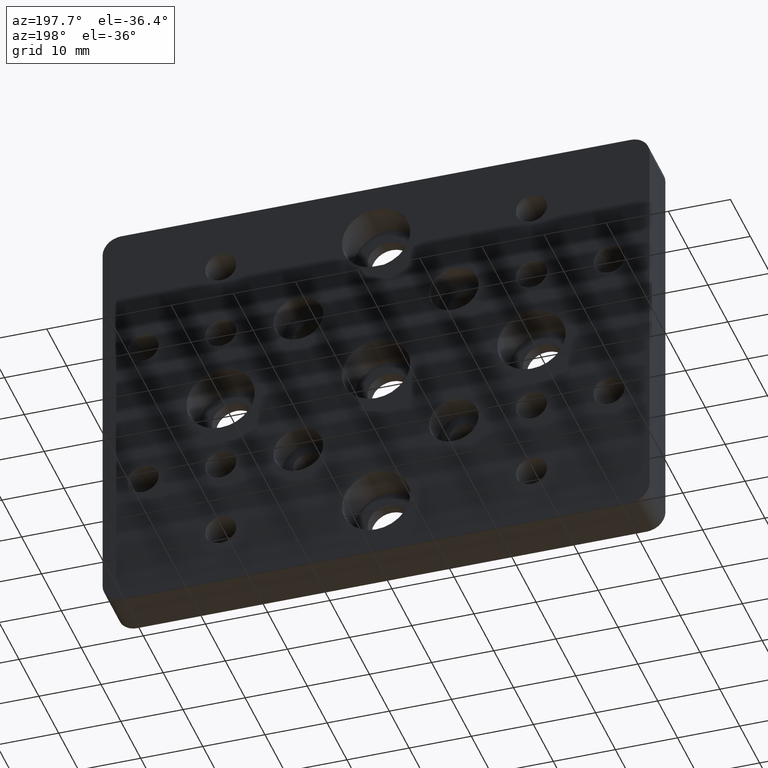
[diagram: clean part render]
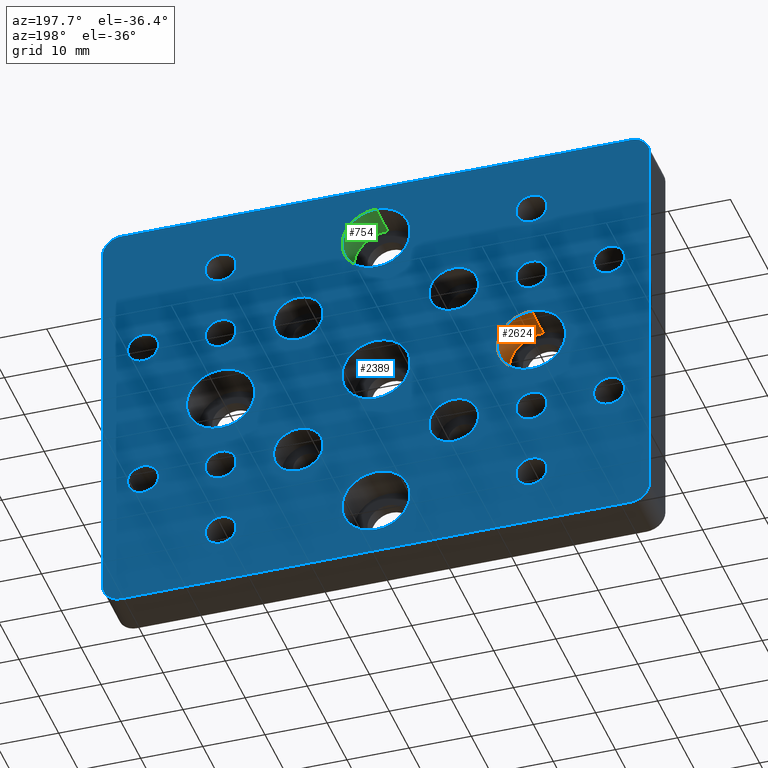
[diagram: same view with three faces highlighted in distinct colors, each labeled with its STEP entity id]
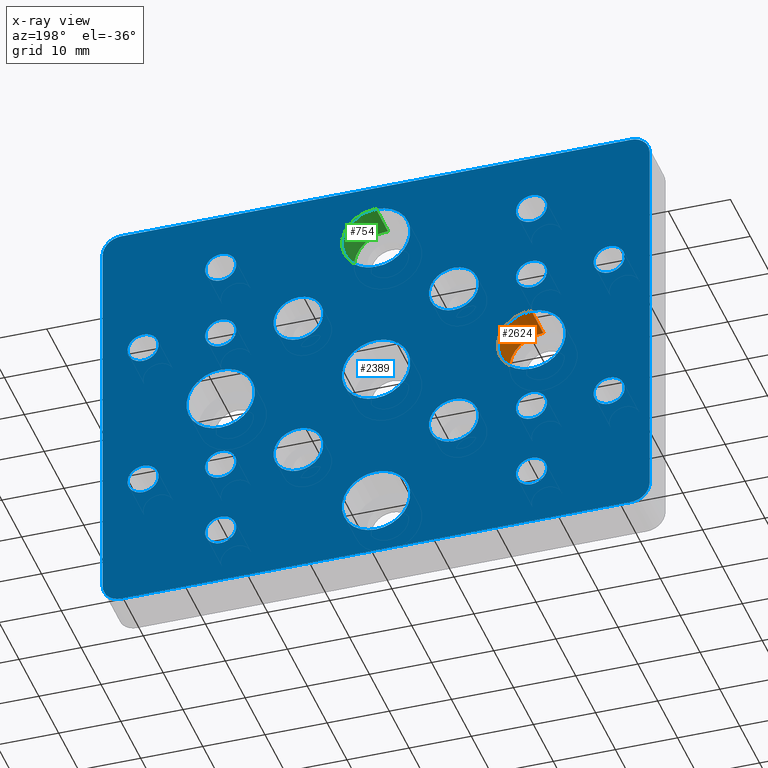
[diagram: x-ray of the same camera — body ghosted, the three highlighted faces saturated]
A machine part, auxiliary view with three faces highlighted in distinct colors.
The next image is the same camera in x-ray (body ghosted, the three faces saturated) — at least one of them is partly hidden behind the body in this view.
Their STEP definitions:

[orange] entity #2624 — the highlighted cylindrical surface (edge-blend (fillet) strip) has radius 5.5 mm, axis along (-0, 1, -0).
#33 = FACE_OUTER_BOUND ( 'NONE', #1479, .T. ) ;
#104 = CARTESIAN_POINT ( 'NONE',  ( -25.00000000000000000, 8.000000000000000000, -5.499999999999994700 ) ) ;
#110 = DIRECTION ( 'NONE',  ( -0.0000000000000000000, 1.000000000000000000, -0.0000000000000000000 ) ) ;
#187 = EDGE_CURVE ( 'NONE', #677, #848, #2114, .T. ) ;
#196 = CARTESIAN_POINT ( 'NONE',  ( -25.00000000000000000, 8.000000000000000000, -5.499999999999994700 ) ) ;
#266 = ORIENTED_EDGE ( 'NONE', *, *, #187, .T. ) ;
#279 = DIRECTION ( 'NONE',  ( -0.0000000000000000000, 1.000000000000000000, -0.0000000000000000000 ) ) ;
#294 = ORIENTED_EDGE ( 'NONE', *, *, #2570, .T. ) ;
#320 = EDGE_CURVE ( 'NONE', #2189, #1106, #508, .T. ) ;
#413 = VECTOR ( 'NONE', #1403, 1000.000000000000000 ) ;
#482 = CARTESIAN_POINT ( 'NONE',  ( -25.00000000000000000, 8.000000000000000000, 0.0000000000000000000 ) ) ;
#496 = DIRECTION ( 'NONE',  ( 0.0000000000000000000, 0.0000000000000000000, 1.000000000000000000 ) ) ;
#503 = LINE ( 'NONE', #2100, #1495 ) ;
#508 = CIRCLE ( 'NONE', #1720, 5.499999999999994700 ) ;
#604 = AXIS2_PLACEMENT_3D ( 'NONE', #2568, #279, #496 ) ;
#606 = EDGE_CURVE ( 'NONE', #1106, #848, #1596, .T. ) ;
#677 = VERTEX_POINT ( 'NONE', #2054 ) ;
#752 = CARTESIAN_POINT ( 'NONE',  ( -25.00000000000000000, 2.000000000000001800, 0.0000000000000000000 ) ) ;
#848 = VERTEX_POINT ( 'NONE', #104 ) ;
#948 = DIRECTION ( 'NONE',  ( 0.0000000000000000000, 0.0000000000000000000, 1.000000000000000000 ) ) ;
#1064 = CARTESIAN_POINT ( 'NONE',  ( -25.00000000000000000, 2.000000000000001800, -5.499999999999994700 ) ) ;
#1106 = VERTEX_POINT ( 'NONE', #1064 ) ;
#1403 = DIRECTION ( 'NONE',  ( -0.0000000000000000000, 1.000000000000000000, -0.0000000000000000000 ) ) ;
#1479 = EDGE_LOOP ( 'NONE', ( #2343, #1549, #294, #266 ) ) ;
#1495 = VECTOR ( 'NONE', #2288, 1000.000000000000000 ) ;
#1549 = ORIENTED_EDGE ( 'NONE', *, *, #320, .F. ) ;
#1596 = LINE ( 'NONE', #196, #413 ) ;
#1720 = AXIS2_PLACEMENT_3D ( 'NONE', #752, #2184, #948 ) ;
#1917 = DIRECTION ( 'NONE',  ( 0.0000000000000000000, 0.0000000000000000000, 1.000000000000000000 ) ) ;
#1973 = CYLINDRICAL_SURFACE ( 'NONE', #604, 5.499999999999994700 ) ;
#2054 = CARTESIAN_POINT ( 'NONE',  ( -25.00000000000000000, 8.000000000000000000, 5.499999999999994700 ) ) ;
#2100 = CARTESIAN_POINT ( 'NONE',  ( -25.00000000000000000, 8.000000000000000000, 5.499999999999994700 ) ) ;
#2114 = CIRCLE ( 'NONE', #2345, 5.499999999999994700 ) ;
#2139 = CARTESIAN_POINT ( 'NONE',  ( -25.00000000000000000, 2.000000000000001800, 5.499999999999994700 ) ) ;
#2184 = DIRECTION ( 'NONE',  ( -0.0000000000000000000, 1.000000000000000000, -0.0000000000000000000 ) ) ;
#2189 = VERTEX_POINT ( 'NONE', #2139 ) ;
#2288 = DIRECTION ( 'NONE',  ( -0.0000000000000000000, 1.000000000000000000, -0.0000000000000000000 ) ) ;
#2343 = ORIENTED_EDGE ( 'NONE', *, *, #606, .F. ) ;
#2345 = AXIS2_PLACEMENT_3D ( 'NONE', #482, #110, #1917 ) ;
#2568 = CARTESIAN_POINT ( 'NONE',  ( -25.00000000000000000, 8.000000000000000000, 0.0000000000000000000 ) ) ;
#2570 = EDGE_CURVE ( 'NONE', #2189, #677, #503, .T. ) ;
#2624 = ADVANCED_FACE ( 'NONE', ( #33 ), #1973, .F. ) ;

[blue] entity #2389 — the highlighted planar face has unit normal (0, 1, 0).
#1 = VERTEX_POINT ( 'NONE', #845 ) ;
#11 = CIRCLE ( 'NONE', #1613, 5.499999999999994700 ) ;
#12 = AXIS2_PLACEMENT_3D ( 'NONE', #2007, #779, #2215 ) ;
#13 = CARTESIAN_POINT ( 'NONE',  ( 12.50000000000000200, 8.000000000000000000, 12.50000000000000000 ) ) ;
#20 = EDGE_CURVE ( 'NONE', #2373, #904, #1065, .T. ) ;
#24 = ORIENTED_EDGE ( 'NONE', *, *, #269, .F. ) ;
#32 = EDGE_LOOP ( 'NONE', ( #2091, #1100, #2645, #1946, #2492, #580, #2445, #546 ) ) ;
#36 = CARTESIAN_POINT ( 'NONE',  ( 25.00000000000000400, 8.000000000000001800, 12.49999999999999800 ) ) ;
#41 = DIRECTION ( 'NONE',  ( -0.0000000000000000000, 1.000000000000000000, -0.0000000000000000000 ) ) ;
#46 = FACE_BOUND ( 'NONE', #1318, .T. ) ;
#50 = AXIS2_PLACEMENT_3D ( 'NONE', #781, #181, #765 ) ;
#66 = AXIS2_PLACEMENT_3D ( 'NONE', #268, #479, #469 ) ;
#70 = CARTESIAN_POINT ( 'NONE',  ( -25.00000000000000000, 8.000000000000001800, -12.50000000000000500 ) ) ;
#72 = LINE ( 'NONE', #359, #2267 ) ;
#73 = DIRECTION ( 'NONE',  ( 0.0000000000000000000, 0.0000000000000000000, 1.000000000000000000 ) ) ;
#74 = FACE_OUTER_BOUND ( 'NONE', #32, .T. ) ;
#84 = ORIENTED_EDGE ( 'NONE', *, *, #911, .F. ) ;
#102 = CIRCLE ( 'NONE', #2455, 2.499999999999988500 ) ;
#104 = CARTESIAN_POINT ( 'NONE',  ( -25.00000000000000000, 8.000000000000000000, -5.499999999999994700 ) ) ;
#106 = EDGE_CURVE ( 'NONE', #926, #143, #1194, .T. ) ;
#108 = CIRCLE ( 'NONE', #1317, 2.499999999999988500 ) ;
#110 = DIRECTION ( 'NONE',  ( -0.0000000000000000000, 1.000000000000000000, -0.0000000000000000000 ) ) ;
#118 = ORIENTED_EDGE ( 'NONE', *, *, #2160, .F. ) ;
#119 = DIRECTION ( 'NONE',  ( -0.0000000000000000000, 1.000000000000000000, -0.0000000000000000000 ) ) ;
#124 = EDGE_CURVE ( 'NONE', #848, #677, #11, .T. ) ;
#127 = CARTESIAN_POINT ( 'NONE',  ( 6.735557395310435100E-016, 8.000000000000000000, -30.49999999999999600 ) ) ;
#132 = FACE_BOUND ( 'NONE', #928, .T. ) ;
#134 = LINE ( 'NONE', #2252, #1738 ) ;
#142 = VERTEX_POINT ( 'NONE', #1128 ) ;
#143 = VERTEX_POINT ( 'NONE', #1310 ) ;
#144 = DIRECTION ( 'NONE',  ( -0.0000000000000000000, 1.000000000000000000, -0.0000000000000000000 ) ) ;
#158 = CIRCLE ( 'NONE', #1511, 2.499999999999988500 ) ;
#164 = FACE_BOUND ( 'NONE', #929, .T. ) ;
#180 = CARTESIAN_POINT ( 'NONE',  ( 12.50000000000000200, 8.000000000000000000, 8.500000000000001800 ) ) ;
#181 = DIRECTION ( 'NONE',  ( -0.0000000000000000000, 1.000000000000000000, -0.0000000000000000000 ) ) ;
#185 = CARTESIAN_POINT ( 'NONE',  ( 25.00000000000000000, 8.000000000000000000, 0.0000000000000000000 ) ) ;
#187 = EDGE_CURVE ( 'NONE', #677, #848, #2114, .T. ) ;
#189 = VERTEX_POINT ( 'NONE', #1733 ) ;
#191 = CIRCLE ( 'NONE', #2510, 5.499999999999994700 ) ;
#192 = AXIS2_PLACEMENT_3D ( 'NONE', #206, #1465, #1668 ) ;
#200 = CARTESIAN_POINT ( 'NONE',  ( -25.00000000000000000, 8.000000000000001800, -27.49999999999999600 ) ) ;
#203 = EDGE_CURVE ( 'NONE', #2276, #189, #1396, .T. ) ;
#205 = ORIENTED_EDGE ( 'NONE', *, *, #1054, .F. ) ;
#206 = CARTESIAN_POINT ( 'NONE',  ( 37.50000000000000700, 8.000000000000001800, 12.49999999999999800 ) ) ;
#212 = DIRECTION ( 'NONE',  ( -0.0000000000000000000, 1.000000000000000000, -0.0000000000000000000 ) ) ;
#215 = AXIS2_PLACEMENT_3D ( 'NONE', #2088, #1685, #1880 ) ;
#219 = ORIENTED_EDGE ( 'NONE', *, *, #281, .F. ) ;
#224 = EDGE_CURVE ( 'NONE', #1415, #2373, #1502, .T. ) ;
#231 = VERTEX_POINT ( 'NONE', #349 ) ;
#232 = DIRECTION ( 'NONE',  ( 0.0000000000000000000, 0.0000000000000000000, 1.000000000000000000 ) ) ;
#255 = CARTESIAN_POINT ( 'NONE',  ( 25.00000000000000400, 8.000000000000001800, -10.00000000000001100 ) ) ;
#265 = ORIENTED_EDGE ( 'NONE', *, *, #680, .F. ) ;
#268 = CARTESIAN_POINT ( 'NONE',  ( 25.00000000000000000, 8.000000000000001800, -25.00000000000000700 ) ) ;
#269 = EDGE_CURVE ( 'NONE', #2524, #520, #1919, .T. ) ;
#281 = EDGE_CURVE ( 'NONE', #1345, #806, #2565, .T. ) ;
#303 = EDGE_CURVE ( 'NONE', #514, #328, #1016, .T. ) ;
#318 = CARTESIAN_POINT ( 'NONE',  ( -25.00000000000000000, 8.000000000000001800, 22.50000000000002100 ) ) ;
#322 = FACE_BOUND ( 'NONE', #1369, .T. ) ;
#328 = VERTEX_POINT ( 'NONE', #1359 ) ;
#334 = CARTESIAN_POINT ( 'NONE',  ( 37.50000000000000700, 8.000000000000001800, 10.00000000000001100 ) ) ;
#338 = DIRECTION ( 'NONE',  ( 0.0000000000000000000, 0.0000000000000000000, 1.000000000000000000 ) ) ;
#343 = AXIS2_PLACEMENT_3D ( 'NONE', #1872, #883, #2284 ) ;
#344 = DIRECTION ( 'NONE',  ( 0.0000000000000000000, 0.0000000000000000000, 1.000000000000000000 ) ) ;
#349 = CARTESIAN_POINT ( 'NONE',  ( 25.00000000000000000, 8.000000000000001800, 27.49999999999999600 ) ) ;
#359 = CARTESIAN_POINT ( 'NONE',  ( -44.00000000000000000, 8.000000000000000000, -34.50000000000000000 ) ) ;
#366 = DIRECTION ( 'NONE',  ( -0.0000000000000000000, 1.000000000000000000, -0.0000000000000000000 ) ) ;
#374 = DIRECTION ( 'NONE',  ( -0.0000000000000000000, 1.000000000000000000, -0.0000000000000000000 ) ) ;
#376 = CARTESIAN_POINT ( 'NONE',  ( 25.00000000000000400, 8.000000000000001800, 14.99999999999998800 ) ) ;
#380 = CARTESIAN_POINT ( 'NONE',  ( 0.0000000000000000000, 8.000000000000000000, -25.00000000000000000 ) ) ;
#383 = CIRCLE ( 'NONE', #1772, 2.499999999999988500 ) ;
#389 = FACE_BOUND ( 'NONE', #2322, .T. ) ;
#394 = EDGE_CURVE ( 'NONE', #559, #1415, #72, .T. ) ;
#403 = ORIENTED_EDGE ( 'NONE', *, *, #1679, .F. ) ;
#420 = VERTEX_POINT ( 'NONE', #768 ) ;
#421 = EDGE_CURVE ( 'NONE', #1817, #1785, #826, .T. ) ;
#424 = ORIENTED_EDGE ( 'NONE', *, *, #203, .F. ) ;
#428 = VERTEX_POINT ( 'NONE', #1802 ) ;
#457 = DIRECTION ( 'NONE',  ( 0.0000000000000000000, 0.0000000000000000000, 1.000000000000000000 ) ) ;
#466 = CIRCLE ( 'NONE', #2113, 2.499999999999988500 ) ;
#469 = DIRECTION ( 'NONE',  ( 0.0000000000000000000, 0.0000000000000000000, 1.000000000000000000 ) ) ;
#475 = EDGE_CURVE ( 'NONE', #904, #428, #2109, .T. ) ;
#477 = AXIS2_PLACEMENT_3D ( 'NONE', #2099, #1703, #2105 ) ;
#478 = FACE_BOUND ( 'NONE', #1714, .T. ) ;
#479 = DIRECTION ( 'NONE',  ( -0.0000000000000000000, 1.000000000000000000, -0.0000000000000000000 ) ) ;
#481 = EDGE_CURVE ( 'NONE', #586, #2061, #569, .T. ) ;
#482 = CARTESIAN_POINT ( 'NONE',  ( -25.00000000000000000, 8.000000000000000000, 0.0000000000000000000 ) ) ;
#489 = CARTESIAN_POINT ( 'NONE',  ( 37.50000000000000700, 8.000000000000001800, -14.99999999999999100 ) ) ;
#499 = CARTESIAN_POINT ( 'NONE',  ( 0.0000000000000000000, 8.000000000000000000, -19.50000000000000700 ) ) ;
#506 = DIRECTION ( 'NONE',  ( -0.0000000000000000000, 1.000000000000000000, -0.0000000000000000000 ) ) ;
#507 = CARTESIAN_POINT ( 'NONE',  ( -25.00000000000000000, 8.000000000000001800, -12.50000000000000500 ) ) ;
#514 = VERTEX_POINT ( 'NONE', #629 ) ;
#520 = VERTEX_POINT ( 'NONE', #1175 ) ;
#523 = VECTOR ( 'NONE', #1675, 1000.000000000000000 ) ;
#525 = VERTEX_POINT ( 'NONE', #376 ) ;
#530 = AXIS2_PLACEMENT_3D ( 'NONE', #1390, #374, #778 ) ;
#538 = CIRCLE ( 'NONE', #2381, 2.499999999999988500 ) ;
#544 = DIRECTION ( 'NONE',  ( 0.0000000000000000000, 0.0000000000000000000, 1.000000000000000000 ) ) ;
#545 = CIRCLE ( 'NONE', #656, 4.000000000000000000 ) ;
#546 = ORIENTED_EDGE ( 'NONE', *, *, #2600, .T. ) ;
#552 = CARTESIAN_POINT ( 'NONE',  ( 25.00000000000000000, 8.000000000000000000, 0.0000000000000000000 ) ) ;
#553 = EDGE_CURVE ( 'NONE', #1665, #1446, #669, .T. ) ;
#559 = VERTEX_POINT ( 'NONE', #568 ) ;
#561 = AXIS2_PLACEMENT_3D ( 'NONE', #699, #119, #1513 ) ;
#564 = AXIS2_PLACEMENT_3D ( 'NONE', #2360, #2611, #1581 ) ;
#568 = CARTESIAN_POINT ( 'NONE',  ( 40.99999999999999300, 8.000000000000000000, -34.50000000000000000 ) ) ;
#569 = CIRCLE ( 'NONE', #2108, 4.000000000000000000 ) ;
#577 = CARTESIAN_POINT ( 'NONE',  ( -25.00000000000000000, 8.000000000000001800, 12.50000000000000500 ) ) ;
#579 = ORIENTED_EDGE ( 'NONE', *, *, #481, .F. ) ;
#580 = ORIENTED_EDGE ( 'NONE', *, *, #475, .T. ) ;
#586 = VERTEX_POINT ( 'NONE', #180 ) ;
#588 = DIRECTION ( 'NONE',  ( 0.0000000000000000000, 0.0000000000000000000, 1.000000000000000000 ) ) ;
#594 = AXIS2_PLACEMENT_3D ( 'NONE', #1975, #1555, #1540 ) ;
#600 = AXIS2_PLACEMENT_3D ( 'NONE', #2032, #1654, #1849 ) ;
#603 = DIRECTION ( 'NONE',  ( 0.0000000000000000000, -0.0000000000000000000, 1.000000000000000000 ) ) ;
#610 = EDGE_CURVE ( 'NONE', #1295, #2551, #538, .T. ) ;
#623 = ORIENTED_EDGE ( 'NONE', *, *, #303, .F. ) ;
#629 = CARTESIAN_POINT ( 'NONE',  ( 25.00000000000000000, 8.000000000000000000, -5.499999999999994700 ) ) ;
#637 = CARTESIAN_POINT ( 'NONE',  ( -44.00000000000000000, 8.000000000000000000, -34.50000000000000000 ) ) ;
#642 = DIRECTION ( 'NONE',  ( -0.0000000000000000000, 1.000000000000000000, -0.0000000000000000000 ) ) ;
#643 = EDGE_CURVE ( 'NONE', #428, #1094, #2590, .T. ) ;
#651 = ORIENTED_EDGE ( 'NONE', *, *, #1170, .F. ) ;
#655 = DIRECTION ( 'NONE',  ( -0.0000000000000000000, 1.000000000000000000, -0.0000000000000000000 ) ) ;
#656 = AXIS2_PLACEMENT_3D ( 'NONE', #1566, #1385, #338 ) ;
#658 = CARTESIAN_POINT ( 'NONE',  ( -12.50000000000070900, 8.000000000000000000, -12.49999999999929800 ) ) ;
#661 = CARTESIAN_POINT ( 'NONE',  ( 44.00000000000000000, 8.000000000000000000, 31.50000000000000000 ) ) ;
#665 = VERTEX_POINT ( 'NONE', #1219 ) ;
#666 = EDGE_CURVE ( 'NONE', #989, #1411, #2533, .T. ) ;
#668 = DIRECTION ( 'NONE',  ( 0.0000000000000000000, 0.0000000000000000000, 1.000000000000000000 ) ) ;
#669 = CIRCLE ( 'NONE', #1095, 2.499999999999988500 ) ;
#673 = FACE_BOUND ( 'NONE', #2562, .T. ) ;
#675 = DIRECTION ( 'NONE',  ( -0.0000000000000000000, 1.000000000000000000, -0.0000000000000000000 ) ) ;
#677 = VERTEX_POINT ( 'NONE', #2054 ) ;
#680 = EDGE_CURVE ( 'NONE', #1, #1029, #2176, .T. ) ;
#681 = DIRECTION ( 'NONE',  ( -0.0000000000000000000, 1.000000000000000000, -0.0000000000000000000 ) ) ;
#682 = VERTEX_POINT ( 'NONE', #2459 ) ;
#686 = CARTESIAN_POINT ( 'NONE',  ( 40.99999999999999300, 8.000000000000000000, 31.50000000000000000 ) ) ;
#692 = CARTESIAN_POINT ( 'NONE',  ( -37.50000000000002100, 8.000000000000001800, -14.99999999999998200 ) ) ;
#699 = CARTESIAN_POINT ( 'NONE',  ( 0.0000000000000000000, 8.000000000000000000, 0.0000000000000000000 ) ) ;
#703 = CIRCLE ( 'NONE', #564, 2.499999999999988500 ) ;
#705 = FACE_BOUND ( 'NONE', #1807, .T. ) ;
#706 = DIRECTION ( 'NONE',  ( -0.0000000000000000000, 1.000000000000000000, -0.0000000000000000000 ) ) ;
#707 = DIRECTION ( 'NONE',  ( -0.0000000000000000000, 1.000000000000000000, -0.0000000000000000000 ) ) ;
#714 = EDGE_CURVE ( 'NONE', #665, #986, #2015, .T. ) ;
#718 = ORIENTED_EDGE ( 'NONE', *, *, #1570, .F. ) ;
#725 = AXIS2_PLACEMENT_3D ( 'NONE', #1493, #506, #1907 ) ;
#733 = CARTESIAN_POINT ( 'NONE',  ( 25.00000000000000400, 8.000000000000001800, -12.49999999999999800 ) ) ;
#742 = CARTESIAN_POINT ( 'NONE',  ( -40.99999999999999300, 8.000000000000000000, -34.50000000000000000 ) ) ;
#762 = CIRCLE ( 'NONE', #343, 2.499999999999988500 ) ;
#765 = DIRECTION ( 'NONE',  ( 0.0000000000000000000, 0.0000000000000000000, 1.000000000000000000 ) ) ;
#767 = FACE_BOUND ( 'NONE', #1949, .T. ) ;
#768 = CARTESIAN_POINT ( 'NONE',  ( -12.50000000000070900, 8.000000000000000000, -16.49999999999930000 ) ) ;
#775 = VERTEX_POINT ( 'NONE', #2508 ) ;
#778 = DIRECTION ( 'NONE',  ( 0.0000000000000000000, 0.0000000000000000000, 1.000000000000000000 ) ) ;
#779 = DIRECTION ( 'NONE',  ( -0.0000000000000000000, 1.000000000000000000, -0.0000000000000000000 ) ) ;
#781 = CARTESIAN_POINT ( 'NONE',  ( -37.50000000000002100, 8.000000000000001800, -12.49999999999999300 ) ) ;
#787 = ORIENTED_EDGE ( 'NONE', *, *, #2014, .F. ) ;
#806 = VERTEX_POINT ( 'NONE', #894 ) ;
#813 = DIRECTION ( 'NONE',  ( 0.0000000000000000000, 0.0000000000000000000, 1.000000000000000000 ) ) ;
#820 = ORIENTED_EDGE ( 'NONE', *, *, #1014, .F. ) ;
#825 = CARTESIAN_POINT ( 'NONE',  ( -37.49999999999999300, 8.000000000000001800, 12.50000000000000500 ) ) ;
#826 = CIRCLE ( 'NONE', #1884, 5.499999999999994700 ) ;
#827 = CIRCLE ( 'NONE', #215, 2.499999999999988500 ) ;
#831 = DIRECTION ( 'NONE',  ( 0.0000000000000000000, 0.0000000000000000000, 1.000000000000000000 ) ) ;
#833 = CIRCLE ( 'NONE', #1707, 3.999999999999996400 ) ;
#835 = EDGE_LOOP ( 'NONE', ( #205, #265 ) ) ;
#840 = DIRECTION ( 'NONE',  ( 0.0000000000000000000, 0.0000000000000000000, 1.000000000000000000 ) ) ;
#845 = CARTESIAN_POINT ( 'NONE',  ( -37.49999999999999300, 8.000000000000001800, 10.00000000000001800 ) ) ;
#848 = VERTEX_POINT ( 'NONE', #104 ) ;
#856 = EDGE_CURVE ( 'NONE', #2061, #586, #1827, .T. ) ;
#878 = VERTEX_POINT ( 'NONE', #318 ) ;
#883 = DIRECTION ( 'NONE',  ( -0.0000000000000000000, 1.000000000000000000, -0.0000000000000000000 ) ) ;
#890 = EDGE_CURVE ( 'NONE', #2216, #878, #2503, .T. ) ;
#894 = CARTESIAN_POINT ( 'NONE',  ( 12.49999999999930000, 8.000000000000000000, -8.500000000000001800 ) ) ;
#898 = EDGE_CURVE ( 'NONE', #1070, #142, #383, .T. ) ;
#904 = VERTEX_POINT ( 'NONE', #945 ) ;
#911 = EDGE_CURVE ( 'NONE', #878, #2216, #703, .T. ) ;
#913 = CIRCLE ( 'NONE', #66, 2.499999999999988500 ) ;
#918 = AXIS2_PLACEMENT_3D ( 'NONE', #733, #1154, #1752 ) ;
#923 = FACE_BOUND ( 'NONE', #835, .T. ) ;
#926 = VERTEX_POINT ( 'NONE', #1774 ) ;
#927 = EDGE_CURVE ( 'NONE', #1589, #1379, #2148, .T. ) ;
#928 = EDGE_LOOP ( 'NONE', ( #118, #1929 ) ) ;
#929 = EDGE_LOOP ( 'NONE', ( #1350, #403 ) ) ;
#932 = ORIENTED_EDGE ( 'NONE', *, *, #124, .F. ) ;
#934 = DIRECTION ( 'NONE',  ( 0.0000000000000000000, 1.000000000000000000, 0.0000000000000000000 ) ) ;
#941 = DIRECTION ( 'NONE',  ( 0.0000000000000000000, 0.0000000000000000000, 1.000000000000000000 ) ) ;
#945 = CARTESIAN_POINT ( 'NONE',  ( -44.00000000000000000, 8.000000000000000000, 31.50000000000000000 ) ) ;
#954 = DIRECTION ( 'NONE',  ( 0.0000000000000000000, 0.0000000000000000000, 1.000000000000000000 ) ) ;
#969 = AXIS2_PLACEMENT_3D ( 'NONE', #185, #1189, #813 ) ;
#972 = DIRECTION ( 'NONE',  ( -0.0000000000000000000, 1.000000000000000000, -0.0000000000000000000 ) ) ;
#980 = CARTESIAN_POINT ( 'NONE',  ( -25.00000000000000000, 8.000000000000001800, -25.00000000000000700 ) ) ;
#983 = DIRECTION ( 'NONE',  ( -0.0000000000000000000, 1.000000000000000000, -0.0000000000000000000 ) ) ;
#986 = VERTEX_POINT ( 'NONE', #2006 ) ;
#989 = VERTEX_POINT ( 'NONE', #2017 ) ;
#990 = DIRECTION ( 'NONE',  ( -0.0000000000000000000, 1.000000000000000000, -0.0000000000000000000 ) ) ;
#997 = DIRECTION ( 'NONE',  ( 1.000000000000000000, 0.0000000000000000000, 0.0000000000000000000 ) ) ;
#1001 = VERTEX_POINT ( 'NONE', #2424 ) ;
#1002 = AXIS2_PLACEMENT_3D ( 'NONE', #2253, #642, #1261 ) ;
#1004 = DIRECTION ( 'NONE',  ( -0.0000000000000000000, 1.000000000000000000, -0.0000000000000000000 ) ) ;
#1013 = CIRCLE ( 'NONE', #477, 5.499999999999994700 ) ;
#1014 = EDGE_CURVE ( 'NONE', #525, #1580, #102, .T. ) ;
#1016 = CIRCLE ( 'NONE', #1375, 5.499999999999994700 ) ;
#1017 = CARTESIAN_POINT ( 'NONE',  ( -44.00000000000000000, 8.000000000000000000, 34.50000000000000000 ) ) ;
#1020 = DIRECTION ( 'NONE',  ( -0.0000000000000000000, -0.0000000000000000000, -1.000000000000000000 ) ) ;
#1021 = CARTESIAN_POINT ( 'NONE',  ( 25.00000000000000400, 8.000000000000001800, 10.00000000000001100 ) ) ;
#1029 = VERTEX_POINT ( 'NONE', #2456 ) ;
#1036 = CARTESIAN_POINT ( 'NONE',  ( -25.00000000000000000, 8.000000000000001800, 10.00000000000001800 ) ) ;
#1041 = DIRECTION ( 'NONE',  ( 0.0000000000000000000, 1.000000000000000000, 0.0000000000000000000 ) ) ;
#1054 = EDGE_CURVE ( 'NONE', #1029, #1, #2046, .T. ) ;
#1061 = EDGE_LOOP ( 'NONE', ( #1690, #2204 ) ) ;
#1065 = LINE ( 'NONE', #637, #523 ) ;
#1067 = DIRECTION ( 'NONE',  ( -0.0000000000000000000, 1.000000000000000000, -0.0000000000000000000 ) ) ;
#1070 = VERTEX_POINT ( 'NONE', #1036 ) ;
#1071 = EDGE_CURVE ( 'NONE', #520, #2524, #827, .T. ) ;
#1091 = CIRCLE ( 'NONE', #1217, 2.499999999999988500 ) ;
#1094 = VERTEX_POINT ( 'NONE', #1413 ) ;
#1095 = AXIS2_PLACEMENT_3D ( 'NONE', #980, #366, #2392 ) ;
#1100 = ORIENTED_EDGE ( 'NONE', *, *, #1588, .T. ) ;
#1101 = AXIS2_PLACEMENT_3D ( 'NONE', #1672, #2496, #2067 ) ;
#1116 = DIRECTION ( 'NONE',  ( 0.0000000000000000000, 0.0000000000000000000, 1.000000000000000000 ) ) ;
#1127 = EDGE_CURVE ( 'NONE', #1923, #231, #762, .T. ) ;
#1128 = CARTESIAN_POINT ( 'NONE',  ( -25.00000000000000000, 8.000000000000001800, 14.99999999999999500 ) ) ;
#1140 = CARTESIAN_POINT ( 'NONE',  ( -40.99999999999999300, 8.000000000000000000, -31.50000000000000000 ) ) ;
#1154 = DIRECTION ( 'NONE',  ( -0.0000000000000000000, 1.000000000000000000, -0.0000000000000000000 ) ) ;
#1156 = DIRECTION ( 'NONE',  ( -0.0000000000000000000, 1.000000000000000000, -0.0000000000000000000 ) ) ;
#1159 = EDGE_CURVE ( 'NONE', #2630, #420, #1597, .T. ) ;
#1170 = EDGE_CURVE ( 'NONE', #189, #2276, #1013, .T. ) ;
#1175 = CARTESIAN_POINT ( 'NONE',  ( 25.00000000000000400, 8.000000000000001800, -14.99999999999998800 ) ) ;
#1189 = DIRECTION ( 'NONE',  ( -0.0000000000000000000, 1.000000000000000000, -0.0000000000000000000 ) ) ;
#1190 = ORIENTED_EDGE ( 'NONE', *, *, #1539, .F. ) ;
#1194 = CIRCLE ( 'NONE', #561, 5.499999999999994700 ) ;
#1197 = AXIS2_PLACEMENT_3D ( 'NONE', #1140, #934, #941 ) ;
#1199 = EDGE_LOOP ( 'NONE', ( #718, #2421 ) ) ;
#1200 = CARTESIAN_POINT ( 'NONE',  ( -37.50000000000002100, 8.000000000000001800, -12.49999999999999300 ) ) ;
#1216 = DIRECTION ( 'NONE',  ( 0.0000000000000000000, 0.0000000000000000000, 1.000000000000000000 ) ) ;
#1217 = AXIS2_PLACEMENT_3D ( 'NONE', #2132, #1287, #1529 ) ;
#1218 = ORIENTED_EDGE ( 'NONE', *, *, #1732, .F. ) ;
#1219 = CARTESIAN_POINT ( 'NONE',  ( -25.00000000000000000, 8.000000000000001800, -10.00000000000001800 ) ) ;
#1229 = ORIENTED_EDGE ( 'NONE', *, *, #898, .F. ) ;
#1237 = DIRECTION ( 'NONE',  ( 0.0000000000000000000, 0.0000000000000000000, 1.000000000000000000 ) ) ;
#1239 = DIRECTION ( 'NONE',  ( 0.0000000000000000000, 0.0000000000000000000, 1.000000000000000000 ) ) ;
#1247 = FACE_BOUND ( 'NONE', #2059, .T. ) ;
#1250 = CIRCLE ( 'NONE', #600, 2.499999999999988500 ) ;
#1251 = CARTESIAN_POINT ( 'NONE',  ( -12.50000000000000200, 8.000000000000000000, 12.50000000000070500 ) ) ;
#1258 = VERTEX_POINT ( 'NONE', #1735 ) ;
#1261 = DIRECTION ( 'NONE',  ( 0.0000000000000000000, 0.0000000000000000000, 1.000000000000000000 ) ) ;
#1273 = DIRECTION ( 'NONE',  ( -0.0000000000000000000, 1.000000000000000000, -0.0000000000000000000 ) ) ;
#1276 = CARTESIAN_POINT ( 'NONE',  ( -37.49999999999999300, 8.000000000000001800, 12.50000000000000500 ) ) ;
#1287 = DIRECTION ( 'NONE',  ( -0.0000000000000000000, 1.000000000000000000, -0.0000000000000000000 ) ) ;
#1295 = VERTEX_POINT ( 'NONE', #692 ) ;
#1306 = CARTESIAN_POINT ( 'NONE',  ( -12.50000000000070900, 8.000000000000000000, -8.499999999999298300 ) ) ;
#1310 = CARTESIAN_POINT ( 'NONE',  ( 0.0000000000000000000, 8.000000000000000000, 5.499999999999994700 ) ) ;
#1315 = CARTESIAN_POINT ( 'NONE',  ( -25.00000000000000000, 8.000000000000001800, 27.49999999999999600 ) ) ;
#1317 = AXIS2_PLACEMENT_3D ( 'NONE', #36, #706, #73 ) ;
#1318 = EDGE_LOOP ( 'NONE', ( #651, #424 ) ) ;
#1338 = FACE_BOUND ( 'NONE', #2436, .T. ) ;
#1344 = DIRECTION ( 'NONE',  ( 0.0000000000000000000, 0.0000000000000000000, 1.000000000000000000 ) ) ;
#1345 = VERTEX_POINT ( 'NONE', #2203 ) ;
#1350 = ORIENTED_EDGE ( 'NONE', *, *, #1930, .F. ) ;
#1351 = AXIS2_PLACEMENT_3D ( 'NONE', #825, #675, #457 ) ;
#1356 = CARTESIAN_POINT ( 'NONE',  ( -12.50000000000000200, 8.000000000000000000, 8.500000000000707000 ) ) ;
#1359 = CARTESIAN_POINT ( 'NONE',  ( 25.00000000000000000, 8.000000000000000000, 5.499999999999994700 ) ) ;
#1369 = EDGE_LOOP ( 'NONE', ( #1762, #219 ) ) ;
#1370 = EDGE_CURVE ( 'NONE', #1446, #1665, #1700, .T. ) ;
#1375 = AXIS2_PLACEMENT_3D ( 'NONE', #552, #1988, #2582 ) ;
#1379 = VERTEX_POINT ( 'NONE', #1356 ) ;
#1385 = DIRECTION ( 'NONE',  ( -0.0000000000000000000, 1.000000000000000000, -0.0000000000000000000 ) ) ;
#1390 = CARTESIAN_POINT ( 'NONE',  ( -12.50000000000000200, 8.000000000000000000, 12.50000000000070500 ) ) ;
#1391 = CIRCLE ( 'NONE', #2169, 2.999999999999999100 ) ;
#1395 = CIRCLE ( 'NONE', #969, 5.499999999999994700 ) ;
#1396 = CIRCLE ( 'NONE', #1525, 5.499999999999994700 ) ;
#1397 = DIRECTION ( 'NONE',  ( 0.0000000000000000000, 0.0000000000000000000, 1.000000000000000000 ) ) ;
#1409 = CARTESIAN_POINT ( 'NONE',  ( 0.0000000000000000000, 8.000000000000000000, -25.00000000000000000 ) ) ;
#1411 = VERTEX_POINT ( 'NONE', #334 ) ;
#1413 = CARTESIAN_POINT ( 'NONE',  ( 40.99999999999999300, 8.000000000000000000, 34.50000000000000000 ) ) ;
#1415 = VERTEX_POINT ( 'NONE', #742 ) ;
#1433 = EDGE_CURVE ( 'NONE', #1785, #1817, #191, .T. ) ;
#1446 = VERTEX_POINT ( 'NONE', #200 ) ;
#1456 = EDGE_CURVE ( 'NONE', #328, #514, #1395, .T. ) ;
#1457 = EDGE_LOOP ( 'NONE', ( #1657, #932 ) ) ;
#1465 = DIRECTION ( 'NONE',  ( -0.0000000000000000000, 1.000000000000000000, -0.0000000000000000000 ) ) ;
#1488 = DIRECTION ( 'NONE',  ( 0.0000000000000000000, 0.0000000000000000000, 1.000000000000000000 ) ) ;
#1493 = CARTESIAN_POINT ( 'NONE',  ( 37.50000000000000700, 8.000000000000001800, -12.50000000000000200 ) ) ;
#1502 = CIRCLE ( 'NONE', #1197, 2.999999999999999100 ) ;
#1511 = AXIS2_PLACEMENT_3D ( 'NONE', #1542, #2355, #1344 ) ;
#1512 = EDGE_LOOP ( 'NONE', ( #1843, #1968 ) ) ;
#1513 = DIRECTION ( 'NONE',  ( 0.0000000000000000000, 0.0000000000000000000, 1.000000000000000000 ) ) ;
#1525 = AXIS2_PLACEMENT_3D ( 'NONE', #1934, #2342, #1533 ) ;
#1529 = DIRECTION ( 'NONE',  ( 0.0000000000000000000, 0.0000000000000000000, 1.000000000000000000 ) ) ;
#1533 = DIRECTION ( 'NONE',  ( 0.0000000000000000000, 0.0000000000000000000, 1.000000000000000000 ) ) ;
#1539 = EDGE_CURVE ( 'NONE', #142, #1070, #2107, .T. ) ;
#1540 = DIRECTION ( 'NONE',  ( 0.0000000000000000000, 0.0000000000000000000, 1.000000000000000000 ) ) ;
#1542 = CARTESIAN_POINT ( 'NONE',  ( 37.50000000000000700, 8.000000000000001800, 12.49999999999999800 ) ) ;
#1543 = AXIS2_PLACEMENT_3D ( 'NONE', #1778, #1156, #544 ) ;
#1555 = DIRECTION ( 'NONE',  ( -0.0000000000000000000, 1.000000000000000000, -0.0000000000000000000 ) ) ;
#1558 = EDGE_LOOP ( 'NONE', ( #2289, #2462 ) ) ;
#1566 = CARTESIAN_POINT ( 'NONE',  ( -12.50000000000070900, 8.000000000000000000, -12.49999999999929800 ) ) ;
#1570 = EDGE_CURVE ( 'NONE', #231, #1923, #1592, .T. ) ;
#1580 = VERTEX_POINT ( 'NONE', #1021 ) ;
#1581 = DIRECTION ( 'NONE',  ( 0.0000000000000000000, 0.0000000000000000000, 1.000000000000000000 ) ) ;
#1582 = ORIENTED_EDGE ( 'NONE', *, *, #1766, .F. ) ;
#1588 = EDGE_CURVE ( 'NONE', #775, #559, #1391, .T. ) ;
#1589 = VERTEX_POINT ( 'NONE', #2086 ) ;
#1592 = CIRCLE ( 'NONE', #1002, 2.499999999999988500 ) ;
#1597 = CIRCLE ( 'NONE', #2131, 4.000000000000000000 ) ;
#1608 = EDGE_CURVE ( 'NONE', #806, #1345, #2173, .T. ) ;
#1613 = AXIS2_PLACEMENT_3D ( 'NONE', #2557, #681, #2135 ) ;
#1639 = CIRCLE ( 'NONE', #50, 2.499999999999988500 ) ;
#1648 = ORIENTED_EDGE ( 'NONE', *, *, #1370, .F. ) ;
#1654 = DIRECTION ( 'NONE',  ( -0.0000000000000000000, 1.000000000000000000, -0.0000000000000000000 ) ) ;
#1657 = ORIENTED_EDGE ( 'NONE', *, *, #187, .F. ) ;
#1658 = CARTESIAN_POINT ( 'NONE',  ( -44.00000000000000000, 8.000000000000000000, -31.50000000000000000 ) ) ;
#1662 = ORIENTED_EDGE ( 'NONE', *, *, #856, .F. ) ;
#1665 = VERTEX_POINT ( 'NONE', #2298 ) ;
#1668 = DIRECTION ( 'NONE',  ( 0.0000000000000000000, 0.0000000000000000000, 1.000000000000000000 ) ) ;
#1672 = CARTESIAN_POINT ( 'NONE',  ( 0.0000000000000000000, 8.000000000000000000, 0.0000000000000000000 ) ) ;
#1674 = FACE_BOUND ( 'NONE', #1457, .T. ) ;
#1675 = DIRECTION ( 'NONE',  ( 0.0000000000000000000, 0.0000000000000000000, 1.000000000000000000 ) ) ;
#1679 = EDGE_CURVE ( 'NONE', #1258, #682, #913, .T. ) ;
#1685 = DIRECTION ( 'NONE',  ( -0.0000000000000000000, 1.000000000000000000, -0.0000000000000000000 ) ) ;
#1690 = ORIENTED_EDGE ( 'NONE', *, *, #421, .F. ) ;
#1695 = DIRECTION ( 'NONE',  ( 0.0000000000000000000, 0.0000000000000000000, 1.000000000000000000 ) ) ;
#1700 = CIRCLE ( 'NONE', #1543, 2.499999999999988500 ) ;
#1703 = DIRECTION ( 'NONE',  ( -0.0000000000000000000, 1.000000000000000000, -0.0000000000000000000 ) ) ;
#1707 = AXIS2_PLACEMENT_3D ( 'NONE', #1251, #41, #232 ) ;
#1708 = CIRCLE ( 'NONE', #1101, 5.499999999999994700 ) ;
#1710 = ORIENTED_EDGE ( 'NONE', *, *, #927, .F. ) ;
#1711 = VERTEX_POINT ( 'NONE', #489 ) ;
#1712 = CARTESIAN_POINT ( 'NONE',  ( -37.50000000000002100, 8.000000000000001800, -10.00000000000000500 ) ) ;
#1714 = EDGE_LOOP ( 'NONE', ( #1662, #579 ) ) ;
#1732 = EDGE_CURVE ( 'NONE', #986, #665, #466, .T. ) ;
#1733 = CARTESIAN_POINT ( 'NONE',  ( 0.0000000000000000000, 8.000000000000000000, 30.49999999999999600 ) ) ;
#1734 = FACE_BOUND ( 'NONE', #1748, .T. ) ;
#1735 = CARTESIAN_POINT ( 'NONE',  ( 25.00000000000000000, 8.000000000000001800, -27.49999999999999600 ) ) ;
#1738 = VECTOR ( 'NONE', #1020, 1000.000000000000000 ) ;
#1742 = ORIENTED_EDGE ( 'NONE', *, *, #666, .F. ) ;
#1748 = EDGE_LOOP ( 'NONE', ( #1742, #1582 ) ) ;
#1752 = DIRECTION ( 'NONE',  ( 0.0000000000000000000, 0.0000000000000000000, 1.000000000000000000 ) ) ;
#1755 = DIRECTION ( 'NONE',  ( 0.0000000000000000000, 0.0000000000000000000, 1.000000000000000000 ) ) ;
#1762 = ORIENTED_EDGE ( 'NONE', *, *, #1608, .F. ) ;
#1766 = EDGE_CURVE ( 'NONE', #1411, #989, #158, .T. ) ;
#1767 = FACE_BOUND ( 'NONE', #1199, .T. ) ;
#1772 = AXIS2_PLACEMENT_3D ( 'NONE', #2385, #144, #344 ) ;
#1774 = CARTESIAN_POINT ( 'NONE',  ( 6.735557395310435100E-016, 8.000000000000000000, -5.499999999999994700 ) ) ;
#1778 = CARTESIAN_POINT ( 'NONE',  ( -25.00000000000000000, 8.000000000000001800, -25.00000000000000700 ) ) ;
#1785 = VERTEX_POINT ( 'NONE', #127 ) ;
#1791 = DIRECTION ( 'NONE',  ( -1.000000000000000000, -0.0000000000000000000, -0.0000000000000000000 ) ) ;
#1802 = CARTESIAN_POINT ( 'NONE',  ( -40.99999999999999300, 8.000000000000000000, 34.50000000000000000 ) ) ;
#1807 = EDGE_LOOP ( 'NONE', ( #1873, #1648 ) ) ;
#1812 = ORIENTED_EDGE ( 'NONE', *, *, #610, .F. ) ;
#1817 = VERTEX_POINT ( 'NONE', #499 ) ;
#1827 = CIRCLE ( 'NONE', #594, 4.000000000000000000 ) ;
#1836 = CARTESIAN_POINT ( 'NONE',  ( 25.00000000000000400, 8.000000000000001800, 12.49999999999999800 ) ) ;
#1839 = PLANE ( 'NONE',  #2044 ) ;
#1843 = ORIENTED_EDGE ( 'NONE', *, *, #1159, .F. ) ;
#1849 = DIRECTION ( 'NONE',  ( 0.0000000000000000000, 0.0000000000000000000, 1.000000000000000000 ) ) ;
#1850 = EDGE_CURVE ( 'NONE', #420, #2630, #545, .T. ) ;
#1865 = CARTESIAN_POINT ( 'NONE',  ( 40.99999999999999300, 8.000000000000000000, -31.50000000000000000 ) ) ;
#1872 = CARTESIAN_POINT ( 'NONE',  ( 25.00000000000000000, 8.000000000000001800, 25.00000000000000700 ) ) ;
#1873 = ORIENTED_EDGE ( 'NONE', *, *, #553, .F. ) ;
#1880 = DIRECTION ( 'NONE',  ( 0.0000000000000000000, 0.0000000000000000000, 1.000000000000000000 ) ) ;
#1884 = AXIS2_PLACEMENT_3D ( 'NONE', #380, #972, #588 ) ;
#1891 = FACE_BOUND ( 'NONE', #2598, .T. ) ;
#1899 = ORIENTED_EDGE ( 'NONE', *, *, #1456, .F. ) ;
#1907 = DIRECTION ( 'NONE',  ( 0.0000000000000000000, 0.0000000000000000000, 1.000000000000000000 ) ) ;
#1917 = DIRECTION ( 'NONE',  ( 0.0000000000000000000, 0.0000000000000000000, 1.000000000000000000 ) ) ;
#1919 = CIRCLE ( 'NONE', #918, 2.499999999999988500 ) ;
#1922 = AXIS2_PLACEMENT_3D ( 'NONE', #686, #2338, #1755 ) ;
#1923 = VERTEX_POINT ( 'NONE', #2383 ) ;
#1929 = ORIENTED_EDGE ( 'NONE', *, *, #2138, .F. ) ;
#1930 = EDGE_CURVE ( 'NONE', #682, #1258, #1250, .T. ) ;
#1931 = EDGE_LOOP ( 'NONE', ( #2514, #1812 ) ) ;
#1934 = CARTESIAN_POINT ( 'NONE',  ( 0.0000000000000000000, 8.000000000000000000, 25.00000000000000000 ) ) ;
#1940 = AXIS2_PLACEMENT_3D ( 'NONE', #577, #983, #831 ) ;
#1946 = ORIENTED_EDGE ( 'NONE', *, *, #224, .T. ) ;
#1949 = EDGE_LOOP ( 'NONE', ( #1190, #1229 ) ) ;
#1966 = DIRECTION ( 'NONE',  ( -0.0000000000000000000, 1.000000000000000000, -0.0000000000000000000 ) ) ;
#1968 = ORIENTED_EDGE ( 'NONE', *, *, #1850, .F. ) ;
#1975 = CARTESIAN_POINT ( 'NONE',  ( 12.50000000000000200, 8.000000000000000000, 12.50000000000000000 ) ) ;
#1988 = DIRECTION ( 'NONE',  ( -0.0000000000000000000, 1.000000000000000000, -0.0000000000000000000 ) ) ;
#1989 = CIRCLE ( 'NONE', #725, 2.499999999999988500 ) ;
#2003 = EDGE_CURVE ( 'NONE', #2121, #775, #134, .T. ) ;
#2006 = CARTESIAN_POINT ( 'NONE',  ( -25.00000000000000000, 8.000000000000001800, -14.99999999999999500 ) ) ;
#2007 = CARTESIAN_POINT ( 'NONE',  ( -25.00000000000000000, 8.000000000000001800, 25.00000000000000700 ) ) ;
#2014 = EDGE_CURVE ( 'NONE', #1379, #1589, #833, .T. ) ;
#2015 = CIRCLE ( 'NONE', #2330, 2.499999999999988500 ) ;
#2017 = CARTESIAN_POINT ( 'NONE',  ( 37.50000000000000700, 8.000000000000001800, 14.99999999999998800 ) ) ;
#2032 = CARTESIAN_POINT ( 'NONE',  ( 25.00000000000000000, 8.000000000000001800, -25.00000000000000700 ) ) ;
#2044 = AXIS2_PLACEMENT_3D ( 'NONE', #2438, #2249, #603 ) ;
#2045 = VECTOR ( 'NONE', #997, 1000.000000000000000 ) ;
#2046 = CIRCLE ( 'NONE', #1351, 2.499999999999988500 ) ;
#2052 = EDGE_CURVE ( 'NONE', #143, #926, #1708, .T. ) ;
#2054 = CARTESIAN_POINT ( 'NONE',  ( -25.00000000000000000, 8.000000000000000000, 5.499999999999994700 ) ) ;
#2057 = CARTESIAN_POINT ( 'NONE',  ( -40.99999999999999300, 8.000000000000000000, 31.50000000000000000 ) ) ;
#2059 = EDGE_LOOP ( 'NONE', ( #1899, #623 ) ) ;
#2061 = VERTEX_POINT ( 'NONE', #2488 ) ;
#2067 = DIRECTION ( 'NONE',  ( 0.0000000000000000000, 0.0000000000000000000, 1.000000000000000000 ) ) ;
#2071 = DIRECTION ( 'NONE',  ( -0.0000000000000000000, 1.000000000000000000, -0.0000000000000000000 ) ) ;
#2077 = CARTESIAN_POINT ( 'NONE',  ( 12.49999999999930000, 8.000000000000000000, -12.50000000000000200 ) ) ;
#2084 = FACE_BOUND ( 'NONE', #1558, .T. ) ;
#2086 = CARTESIAN_POINT ( 'NONE',  ( -12.50000000000000200, 8.000000000000000000, 16.50000000000070000 ) ) ;
#2088 = CARTESIAN_POINT ( 'NONE',  ( 25.00000000000000400, 8.000000000000001800, -12.49999999999999800 ) ) ;
#2091 = ORIENTED_EDGE ( 'NONE', *, *, #2003, .T. ) ;
#2099 = CARTESIAN_POINT ( 'NONE',  ( 0.0000000000000000000, 8.000000000000000000, 25.00000000000000000 ) ) ;
#2105 = DIRECTION ( 'NONE',  ( 0.0000000000000000000, 0.0000000000000000000, 1.000000000000000000 ) ) ;
#2107 = CIRCLE ( 'NONE', #1940, 2.499999999999988500 ) ;
#2108 = AXIS2_PLACEMENT_3D ( 'NONE', #13, #212, #2199 ) ;
#2109 = CIRCLE ( 'NONE', #2575, 3.000000000000002700 ) ;
#2113 = AXIS2_PLACEMENT_3D ( 'NONE', #507, #707, #1116 ) ;
#2114 = CIRCLE ( 'NONE', #2345, 5.499999999999994700 ) ;
#2120 = EDGE_CURVE ( 'NONE', #1580, #525, #108, .T. ) ;
#2121 = VERTEX_POINT ( 'NONE', #661 ) ;
#2127 = ORIENTED_EDGE ( 'NONE', *, *, #2120, .F. ) ;
#2131 = AXIS2_PLACEMENT_3D ( 'NONE', #658, #1273, #1488 ) ;
#2132 = CARTESIAN_POINT ( 'NONE',  ( 37.50000000000000700, 8.000000000000001800, -12.50000000000000200 ) ) ;
#2135 = DIRECTION ( 'NONE',  ( 0.0000000000000000000, 0.0000000000000000000, 1.000000000000000000 ) ) ;
#2138 = EDGE_CURVE ( 'NONE', #1711, #1001, #1091, .T. ) ;
#2148 = CIRCLE ( 'NONE', #530, 3.999999999999996400 ) ;
#2160 = EDGE_CURVE ( 'NONE', #1001, #1711, #1989, .T. ) ;
#2169 = AXIS2_PLACEMENT_3D ( 'NONE', #1865, #1041, #840 ) ;
#2173 = CIRCLE ( 'NONE', #2580, 4.000000000000000000 ) ;
#2176 = CIRCLE ( 'NONE', #2244, 2.499999999999988500 ) ;
#2177 = AXIS2_PLACEMENT_3D ( 'NONE', #2596, #1966, #954 ) ;
#2178 = FACE_BOUND ( 'NONE', #2185, .T. ) ;
#2185 = EDGE_LOOP ( 'NONE', ( #2362, #84 ) ) ;
#2199 = DIRECTION ( 'NONE',  ( 0.0000000000000000000, 0.0000000000000000000, 1.000000000000000000 ) ) ;
#2203 = CARTESIAN_POINT ( 'NONE',  ( 12.49999999999930000, 8.000000000000000000, -16.50000000000000000 ) ) ;
#2204 = ORIENTED_EDGE ( 'NONE', *, *, #1433, .F. ) ;
#2215 = DIRECTION ( 'NONE',  ( 0.0000000000000000000, 0.0000000000000000000, 1.000000000000000000 ) ) ;
#2216 = VERTEX_POINT ( 'NONE', #1315 ) ;
#2244 = AXIS2_PLACEMENT_3D ( 'NONE', #1276, #1067, #668 ) ;
#2246 = ORIENTED_EDGE ( 'NONE', *, *, #714, .F. ) ;
#2249 = DIRECTION ( 'NONE',  ( 0.0000000000000000000, 1.000000000000000000, 0.0000000000000000000 ) ) ;
#2252 = CARTESIAN_POINT ( 'NONE',  ( 44.00000000000000000, 8.000000000000000000, -34.50000000000000000 ) ) ;
#2253 = CARTESIAN_POINT ( 'NONE',  ( 25.00000000000000000, 8.000000000000001800, 25.00000000000000700 ) ) ;
#2266 = EDGE_CURVE ( 'NONE', #2551, #1295, #1639, .T. ) ;
#2267 = VECTOR ( 'NONE', #1791, 1000.000000000000000 ) ;
#2276 = VERTEX_POINT ( 'NONE', #2615 ) ;
#2284 = DIRECTION ( 'NONE',  ( 0.0000000000000000000, 0.0000000000000000000, 1.000000000000000000 ) ) ;
#2287 = DIRECTION ( 'NONE',  ( -0.0000000000000000000, 1.000000000000000000, -0.0000000000000000000 ) ) ;
#2289 = ORIENTED_EDGE ( 'NONE', *, *, #2052, .F. ) ;
#2298 = CARTESIAN_POINT ( 'NONE',  ( -25.00000000000000000, 8.000000000000001800, -22.50000000000002100 ) ) ;
#2322 = EDGE_LOOP ( 'NONE', ( #820, #2127 ) ) ;
#2330 = AXIS2_PLACEMENT_3D ( 'NONE', #70, #2287, #1695 ) ;
#2338 = DIRECTION ( 'NONE',  ( 0.0000000000000000000, 1.000000000000000000, 0.0000000000000000000 ) ) ;
#2342 = DIRECTION ( 'NONE',  ( -0.0000000000000000000, 1.000000000000000000, -0.0000000000000000000 ) ) ;
#2345 = AXIS2_PLACEMENT_3D ( 'NONE', #482, #110, #1917 ) ;
#2353 = ORIENTED_EDGE ( 'NONE', *, *, #1071, .F. ) ;
#2355 = DIRECTION ( 'NONE',  ( -0.0000000000000000000, 1.000000000000000000, -0.0000000000000000000 ) ) ;
#2360 = CARTESIAN_POINT ( 'NONE',  ( -25.00000000000000000, 8.000000000000001800, 25.00000000000000700 ) ) ;
#2362 = ORIENTED_EDGE ( 'NONE', *, *, #890, .F. ) ;
#2371 = FACE_BOUND ( 'NONE', #1061, .T. ) ;
#2373 = VERTEX_POINT ( 'NONE', #1658 ) ;
#2381 = AXIS2_PLACEMENT_3D ( 'NONE', #1200, #1004, #1237 ) ;
#2383 = CARTESIAN_POINT ( 'NONE',  ( 25.00000000000000000, 8.000000000000001800, 22.50000000000002100 ) ) ;
#2385 = CARTESIAN_POINT ( 'NONE',  ( -25.00000000000000000, 8.000000000000001800, 12.50000000000000500 ) ) ;
#2389 = ADVANCED_FACE ( 'NONE', ( #478, #1891, #2595, #322, #46, #2084, #2371, #1247, #1674, #2430, #923, #1734, #132, #389, #767, #673, #1338, #705, #2178, #1767, #164, #74 ), #1839, .T. ) ;
#2392 = DIRECTION ( 'NONE',  ( 0.0000000000000000000, 0.0000000000000000000, 1.000000000000000000 ) ) ;
#2421 = ORIENTED_EDGE ( 'NONE', *, *, #1127, .F. ) ;
#2424 = CARTESIAN_POINT ( 'NONE',  ( 37.50000000000000700, 8.000000000000001800, -10.00000000000001400 ) ) ;
#2430 = FACE_BOUND ( 'NONE', #1931, .T. ) ;
#2436 = EDGE_LOOP ( 'NONE', ( #24, #2353 ) ) ;
#2438 = CARTESIAN_POINT ( 'NONE',  ( -44.00000000000000000, 8.000000000000000000, 34.50000000000000000 ) ) ;
#2445 = ORIENTED_EDGE ( 'NONE', *, *, #643, .T. ) ;
#2454 = DIRECTION ( 'NONE',  ( 0.0000000000000000000, 0.0000000000000000000, 1.000000000000000000 ) ) ;
#2455 = AXIS2_PLACEMENT_3D ( 'NONE', #1836, #2071, #1216 ) ;
#2456 = CARTESIAN_POINT ( 'NONE',  ( -37.49999999999999300, 8.000000000000001800, 14.99999999999999500 ) ) ;
#2459 = CARTESIAN_POINT ( 'NONE',  ( 25.00000000000000000, 8.000000000000001800, -22.50000000000002100 ) ) ;
#2462 = ORIENTED_EDGE ( 'NONE', *, *, #106, .F. ) ;
#2475 = DIRECTION ( 'NONE',  ( 0.0000000000000000000, 1.000000000000000000, 0.0000000000000000000 ) ) ;
#2488 = CARTESIAN_POINT ( 'NONE',  ( 12.50000000000000200, 8.000000000000000000, 16.50000000000000000 ) ) ;
#2490 = CIRCLE ( 'NONE', #1922, 3.000000000000002700 ) ;
#2492 = ORIENTED_EDGE ( 'NONE', *, *, #20, .T. ) ;
#2496 = DIRECTION ( 'NONE',  ( -0.0000000000000000000, 1.000000000000000000, -0.0000000000000000000 ) ) ;
#2503 = CIRCLE ( 'NONE', #12, 2.499999999999988500 ) ;
#2508 = CARTESIAN_POINT ( 'NONE',  ( 44.00000000000000000, 8.000000000000000000, -31.50000000000000000 ) ) ;
#2510 = AXIS2_PLACEMENT_3D ( 'NONE', #1409, #990, #1397 ) ;
#2514 = ORIENTED_EDGE ( 'NONE', *, *, #2266, .F. ) ;
#2524 = VERTEX_POINT ( 'NONE', #255 ) ;
#2533 = CIRCLE ( 'NONE', #192, 2.499999999999988500 ) ;
#2551 = VERTEX_POINT ( 'NONE', #1712 ) ;
#2557 = CARTESIAN_POINT ( 'NONE',  ( -25.00000000000000000, 8.000000000000000000, 0.0000000000000000000 ) ) ;
#2562 = EDGE_LOOP ( 'NONE', ( #2246, #1218 ) ) ;
#2565 = CIRCLE ( 'NONE', #2177, 4.000000000000000000 ) ;
#2575 = AXIS2_PLACEMENT_3D ( 'NONE', #2057, #2475, #1239 ) ;
#2580 = AXIS2_PLACEMENT_3D ( 'NONE', #2077, #655, #2454 ) ;
#2582 = DIRECTION ( 'NONE',  ( 0.0000000000000000000, 0.0000000000000000000, 1.000000000000000000 ) ) ;
#2590 = LINE ( 'NONE', #1017, #2045 ) ;
#2595 = FACE_BOUND ( 'NONE', #1512, .T. ) ;
#2596 = CARTESIAN_POINT ( 'NONE',  ( 12.49999999999930000, 8.000000000000000000, -12.50000000000000200 ) ) ;
#2598 = EDGE_LOOP ( 'NONE', ( #1710, #787 ) ) ;
#2600 = EDGE_CURVE ( 'NONE', #1094, #2121, #2490, .T. ) ;
#2611 = DIRECTION ( 'NONE',  ( -0.0000000000000000000, 1.000000000000000000, -0.0000000000000000000 ) ) ;
#2615 = CARTESIAN_POINT ( 'NONE',  ( 6.735557395310435100E-016, 8.000000000000000000, 19.50000000000000700 ) ) ;
#2630 = VERTEX_POINT ( 'NONE', #1306 ) ;
#2645 = ORIENTED_EDGE ( 'NONE', *, *, #394, .T. ) ;

[green] entity #754 — the highlighted cylindrical surface (edge-blend (fillet) strip) has radius 5.5 mm, axis along (-0, 1, -0).
#62 = DIRECTION ( 'NONE',  ( -0.0000000000000000000, 1.000000000000000000, -0.0000000000000000000 ) ) ;
#140 = ORIENTED_EDGE ( 'NONE', *, *, #524, .F. ) ;
#146 = DIRECTION ( 'NONE',  ( -0.0000000000000000000, 1.000000000000000000, -0.0000000000000000000 ) ) ;
#189 = VERTEX_POINT ( 'NONE', #1733 ) ;
#245 = CARTESIAN_POINT ( 'NONE',  ( 0.0000000000000000000, 8.000000000000000000, 30.49999999999999600 ) ) ;
#296 = VERTEX_POINT ( 'NONE', #2194 ) ;
#330 = VERTEX_POINT ( 'NONE', #2606 ) ;
#361 = AXIS2_PLACEMENT_3D ( 'NONE', #836, #62, #1246 ) ;
#441 = CYLINDRICAL_SURFACE ( 'NONE', #361, 5.499999999999994700 ) ;
#462 = ORIENTED_EDGE ( 'NONE', *, *, #1170, .T. ) ;
#477 = AXIS2_PLACEMENT_3D ( 'NONE', #2099, #1703, #2105 ) ;
#509 = FACE_OUTER_BOUND ( 'NONE', #1060, .T. ) ;
#524 = EDGE_CURVE ( 'NONE', #296, #330, #2205, .T. ) ;
#746 = EDGE_CURVE ( 'NONE', #296, #189, #1472, .T. ) ;
#754 = ADVANCED_FACE ( 'NONE', ( #509 ), #441, .F. ) ;
#836 = CARTESIAN_POINT ( 'NONE',  ( 0.0000000000000000000, 8.000000000000000000, 25.00000000000000000 ) ) ;
#942 = DIRECTION ( 'NONE',  ( -0.0000000000000000000, 1.000000000000000000, -0.0000000000000000000 ) ) ;
#978 = LINE ( 'NONE', #1770, #1333 ) ;
#1013 = CIRCLE ( 'NONE', #477, 5.499999999999994700 ) ;
#1060 = EDGE_LOOP ( 'NONE', ( #2405, #140, #1806, #462 ) ) ;
#1170 = EDGE_CURVE ( 'NONE', #189, #2276, #1013, .T. ) ;
#1246 = DIRECTION ( 'NONE',  ( 0.0000000000000000000, 0.0000000000000000000, 1.000000000000000000 ) ) ;
#1333 = VECTOR ( 'NONE', #942, 1000.000000000000000 ) ;
#1341 = EDGE_CURVE ( 'NONE', #330, #2276, #978, .T. ) ;
#1472 = LINE ( 'NONE', #245, #1950 ) ;
#1571 = DIRECTION ( 'NONE',  ( 0.0000000000000000000, 0.0000000000000000000, 1.000000000000000000 ) ) ;
#1703 = DIRECTION ( 'NONE',  ( -0.0000000000000000000, 1.000000000000000000, -0.0000000000000000000 ) ) ;
#1733 = CARTESIAN_POINT ( 'NONE',  ( 0.0000000000000000000, 8.000000000000000000, 30.49999999999999600 ) ) ;
#1770 = CARTESIAN_POINT ( 'NONE',  ( 6.735557395310435100E-016, 8.000000000000000000, 19.50000000000000700 ) ) ;
#1786 = AXIS2_PLACEMENT_3D ( 'NONE', #1977, #146, #1571 ) ;
#1806 = ORIENTED_EDGE ( 'NONE', *, *, #746, .T. ) ;
#1950 = VECTOR ( 'NONE', #2083, 1000.000000000000000 ) ;
#1977 = CARTESIAN_POINT ( 'NONE',  ( 0.0000000000000000000, 2.000000000000001800, 25.00000000000000000 ) ) ;
#2083 = DIRECTION ( 'NONE',  ( -0.0000000000000000000, 1.000000000000000000, -0.0000000000000000000 ) ) ;
#2099 = CARTESIAN_POINT ( 'NONE',  ( 0.0000000000000000000, 8.000000000000000000, 25.00000000000000000 ) ) ;
#2105 = DIRECTION ( 'NONE',  ( 0.0000000000000000000, 0.0000000000000000000, 1.000000000000000000 ) ) ;
#2194 = CARTESIAN_POINT ( 'NONE',  ( 0.0000000000000000000, 2.000000000000001800, 30.49999999999999600 ) ) ;
#2205 = CIRCLE ( 'NONE', #1786, 5.499999999999994700 ) ;
#2276 = VERTEX_POINT ( 'NONE', #2615 ) ;
#2405 = ORIENTED_EDGE ( 'NONE', *, *, #1341, .F. ) ;
#2606 = CARTESIAN_POINT ( 'NONE',  ( 6.735557395310435100E-016, 2.000000000000001800, 19.50000000000000700 ) ) ;
#2615 = CARTESIAN_POINT ( 'NONE',  ( 6.735557395310435100E-016, 8.000000000000000000, 19.50000000000000700 ) ) ;